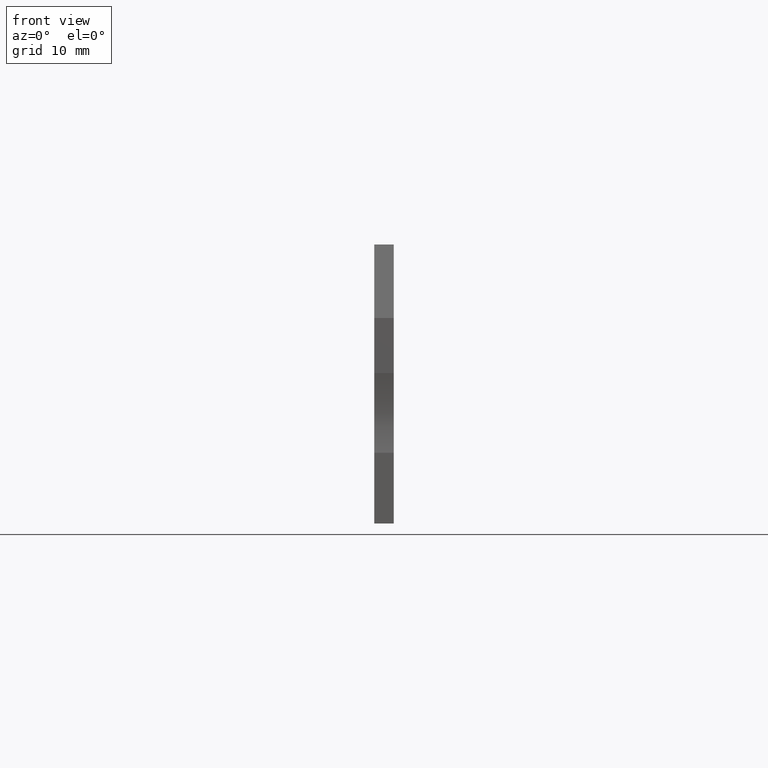
[diagram: clean part render]
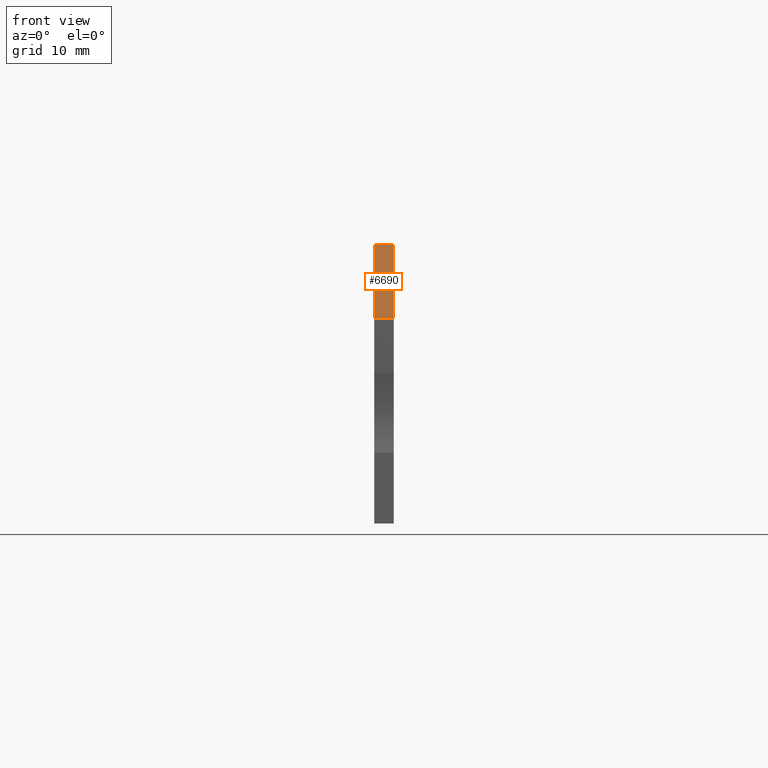
[diagram: same view with one face highlighted and labeled with its STEP entity id]
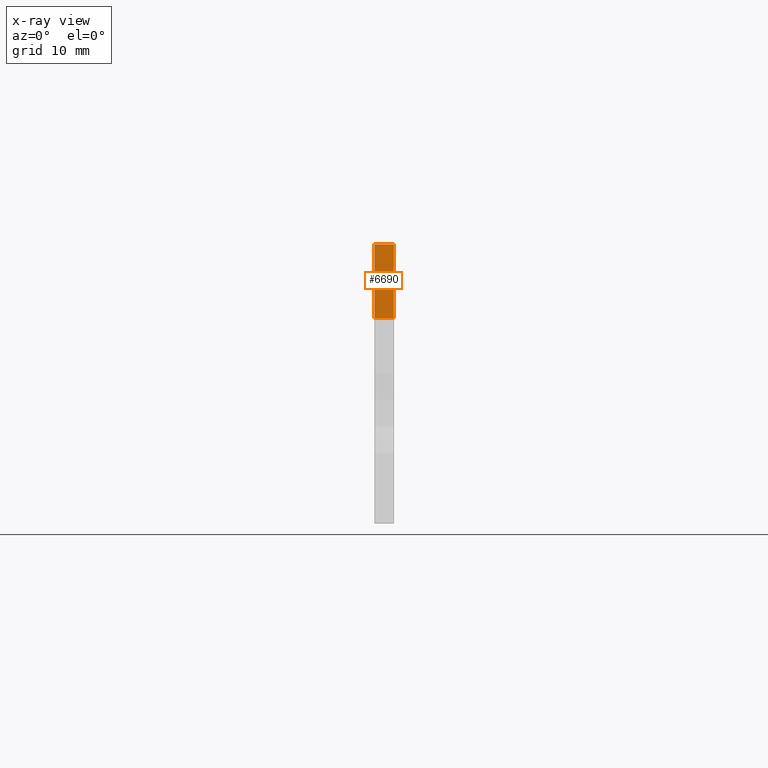
[diagram: x-ray of the same camera — body ghosted, the highlighted face saturated]
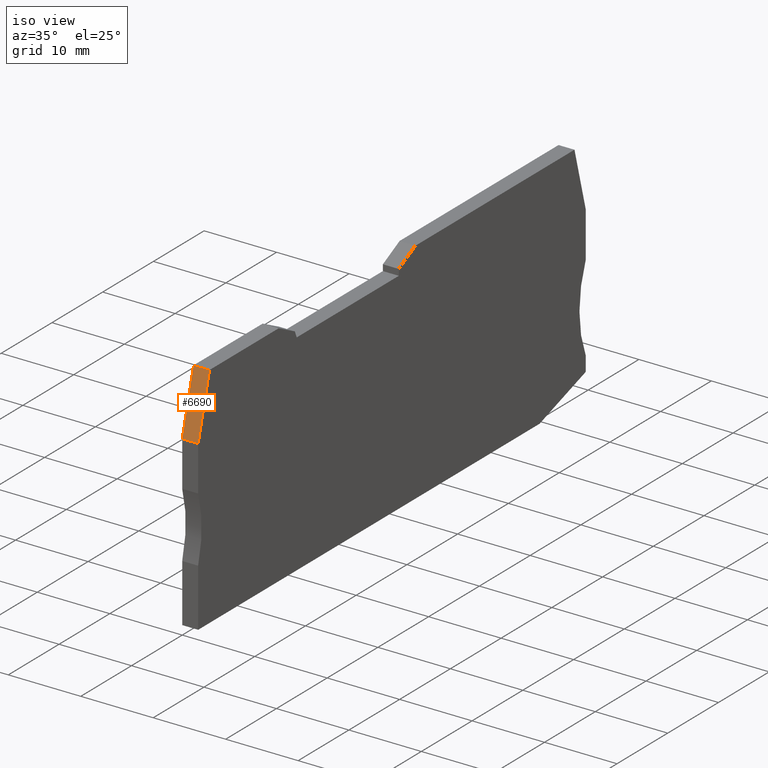
[diagram: same view with one face highlighted and labeled with its STEP entity id]
A machine part, front view. The second image highlights one B-rep face of the part: STEP entity #6690.
The next image is the same camera in x-ray: the body ghosted, the highlighted face saturated — about 0% of this face is hidden behind the body in this view.
A second angle (iso view) of the same face is appended — the face is thin or edge-on in the first view.
In plain terms, the highlighted planar face has unit normal (-0, -0.9659, 0.2588).
Its self-contained STEP definition (entity closure, byte-faithful):
#2340=CARTESIAN_POINT('',(10.9578242464708,-6.65000000001046,
-2.8421709430404E-14));
#2350=DIRECTION('',(0.,0.,1.));
#2360=VECTOR('',#2350,1.);
#2370=LINE('',#2340,#2360);
#2380=CARTESIAN_POINT('',(10.9578242464708,-6.65000000001046,
-3.68594044175552E-14));
#2390=VERTEX_POINT('',#2380);
#2400=CARTESIAN_POINT('',(10.9578242464708,-6.65000000001046,
2.19999999999845));
#2410=VERTEX_POINT('',#2400);
#2420=EDGE_CURVE('',#2390,#2410,#2370,.T.);
#4330=CARTESIAN_POINT('',(3.65992601186053,-33.886127,2.19999999999837))
;
#4340=DIRECTION('',(0.258819045102903,0.965925826288966,
2.96984659087229E-15));
#4350=VECTOR('',#4340,1.);
#4360=LINE('',#4330,#4350);
#4370=CARTESIAN_POINT('',(8.72968082469053,-14.9655444566315,
2.19999999999843));
#4380=VERTEX_POINT('',#4370);
#4390=EDGE_CURVE('',#4380,#2410,#4360,.T.);
#5180=CARTESIAN_POINT('',(8.72968082469053,-14.9655444566315,
-3.68594044175552E-14));
#5190=VERTEX_POINT('',#5180);
#5220=CARTESIAN_POINT('',(8.72968082469053,-14.9655444566315,
-2.8421709430404E-14));
#5230=DIRECTION('',(0.,0.,1.));
#5240=VECTOR('',#5230,1.);
#5250=LINE('',#5220,#5240);
#5260=EDGE_CURVE('',#5190,#4380,#5250,.T.);
#5850=CARTESIAN_POINT('',(3.65992601186053,-33.886127,
-3.68594044175552E-14));
#5860=DIRECTION('',(-0.258819045102903,-0.965925826288966,0.));
#5870=VECTOR('',#5860,1.);
#5880=LINE('',#5850,#5870);
#5890=EDGE_CURVE('',#2390,#5190,#5880,.T.);
#6580=CARTESIAN_POINT('',(10.8585248273156,-7.02059047745902,
2.19999999999997));
#6590=DIRECTION('',(-0.965925826288966,0.258819045102903,0.));
#6600=DIRECTION('',(0.258819045102903,0.965925826288966,0.));
#6610=AXIS2_PLACEMENT_3D('',#6580,#6590,#6600);
#6620=PLANE('',#6610);
#6630=ORIENTED_EDGE('',*,*,#5260,.T.);
#6640=ORIENTED_EDGE('',*,*,#5890,.T.);
#6650=ORIENTED_EDGE('',*,*,#2420,.F.);
#6660=ORIENTED_EDGE('',*,*,#4390,.T.);
#6670=EDGE_LOOP('',(#6660,#6650,#6640,#6630));
#6680=FACE_OUTER_BOUND('',#6670,.T.);
#6690=ADVANCED_FACE('',(#6680),#6620,.T.);